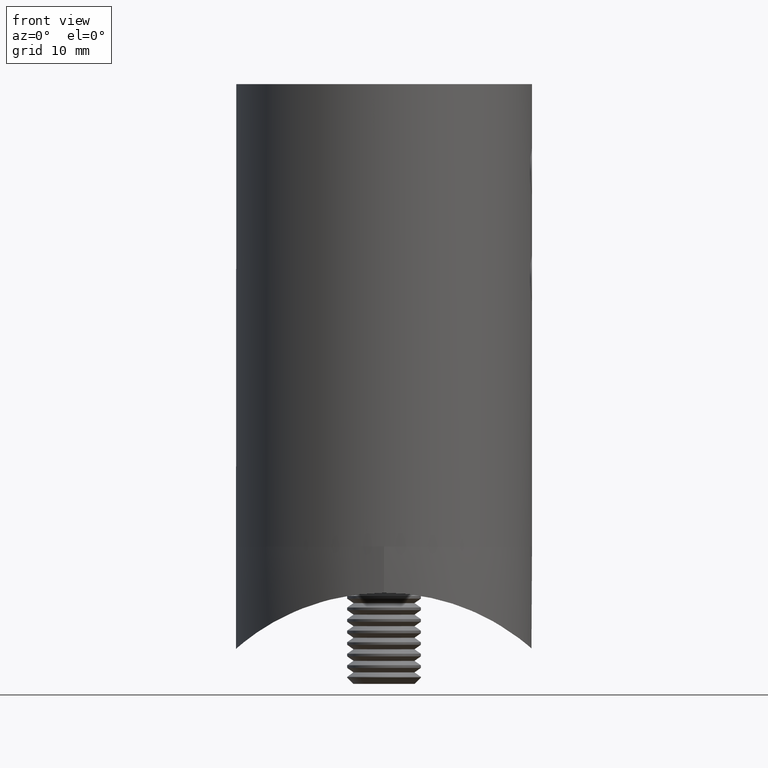
[diagram: clean part render]
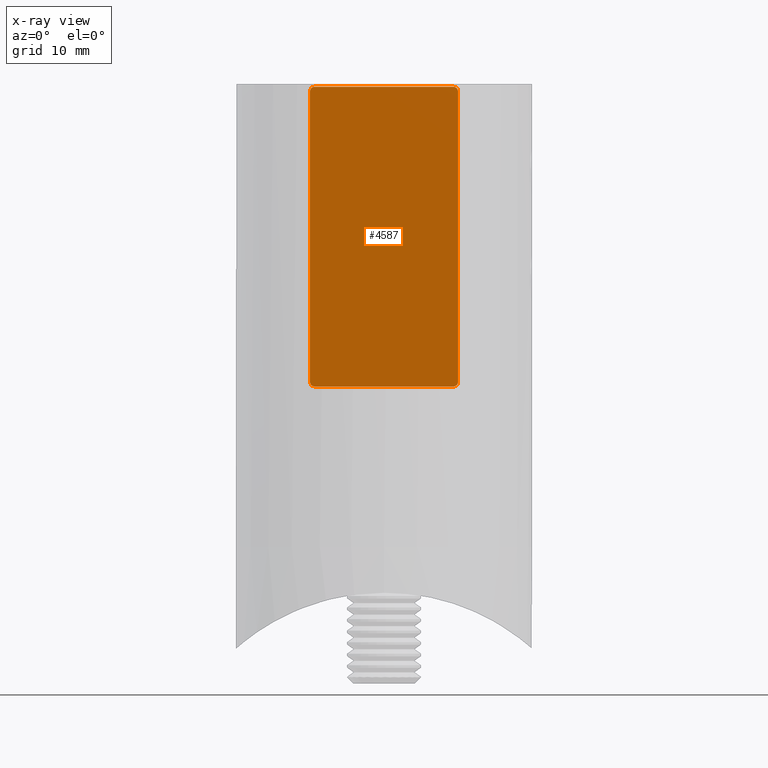
[diagram: x-ray — body ghosted, one internal face saturated and labeled with its STEP entity id]
A machine part, front view, then the same camera in x-ray: the body is ghosted and one INTERNAL B-rep face — a face not visible from any outside direction — is saturated and labeled: STEP entity #4587.
In plain terms, the highlighted planar face has unit normal (0, -1, -0).
Its self-contained STEP definition (entity closure, byte-faithful):
#58 = VECTOR ( 'NONE', #7859, 1000.000000000000000 ) ;
#299 = ORIENTED_EDGE ( 'NONE', *, *, #11091, .F. ) ;
#303 = ORIENTED_EDGE ( 'NONE', *, *, #5945, .T. ) ;
#342 = CARTESIAN_POINT ( 'NONE',  ( -16.19999999999999929, 0.000000000000000000, 7.499999999999996447 ) ) ;
#470 = CARTESIAN_POINT ( 'NONE',  ( -15.69999999999999929, 0.000000000000000000, -7.500000000000000000 ) ) ;
#501 = EDGE_LOOP ( 'NONE', ( #303, #2649, #3892, #14175, #14904, #8081, #299, #19527 ) ) ;
#859 = CARTESIAN_POINT ( 'NONE',  ( -15.69999999999999929, 0.000000000000000000, -7.500000000000000000 ) ) ;
#936 = EDGE_CURVE ( 'NONE', #11964, #18484, #19743, .T. ) ;
#1105 = CARTESIAN_POINT ( 'NONE',  ( -15.69999999999999574, 0.000000000000000000, 8.000000000000000000 ) ) ;
#1132 = VERTEX_POINT ( 'NONE', #4697 ) ;
#1371 = AXIS2_PLACEMENT_3D ( 'NONE', #6819, #12972, #17634 ) ;
#1564 = CARTESIAN_POINT ( 'NONE',  ( 15.69999999999999574, 0.000000000000000000, -8.000000000000000000 ) ) ;
#2122 = DIRECTION ( 'NONE',  ( 0.000000000000000000, -0.000000000000000000, -1.000000000000000000 ) ) ;
#2172 = EDGE_CURVE ( 'NONE', #12885, #5051, #12072, .T. ) ;
#2398 = CIRCLE ( 'NONE', #18486, 0.5000000000000004441 ) ;
#2640 = CARTESIAN_POINT ( 'NONE',  ( -16.19999999999999929, 0.000000000000000000, -7.499999999999996447 ) ) ;
#2649 = ORIENTED_EDGE ( 'NONE', *, *, #936, .T. ) ;
#2784 = CARTESIAN_POINT ( 'NONE',  ( -15.69999999999999574, 0.000000000000000000, -8.000000000000000000 ) ) ;
#2958 = DIRECTION ( 'NONE',  ( 0.000000000000000000, 0.000000000000000000, -1.000000000000000000 ) ) ;
#3289 = DIRECTION ( 'NONE',  ( 0.000000000000000000, 0.000000000000000000, 1.000000000000000000 ) ) ;
#3722 = VERTEX_POINT ( 'NONE', #342 ) ;
#3892 = ORIENTED_EDGE ( 'NONE', *, *, #12244, .F. ) ;
#4054 = DIRECTION ( 'NONE',  ( 1.000000000000000000, 0.000000000000000000, 0.000000000000000000 ) ) ;
#4211 = CARTESIAN_POINT ( 'NONE',  ( 16.19999999999999929, 0.000000000000000000, 7.499999999999996447 ) ) ;
#4336 = CARTESIAN_POINT ( 'NONE',  ( 15.69999999999999574, 0.000000000000000000, 8.000000000000000000 ) ) ;
#4501 = CARTESIAN_POINT ( 'NONE',  ( 16.19999999999999929, 0.000000000000000000, 7.499999999999996447 ) ) ;
#4587 = ADVANCED_FACE ( 'NONE', ( #17289 ), #8171, .T. ) ;
#4697 = CARTESIAN_POINT ( 'NONE',  ( -15.69999999999999574, 0.000000000000000000, 8.000000000000000000 ) ) ;
#5051 = VERTEX_POINT ( 'NONE', #5099 ) ;
#5099 = CARTESIAN_POINT ( 'NONE',  ( 16.19999999999999929, 0.000000000000000000, -7.499999999999996447 ) ) ;
#5351 = DIRECTION ( 'NONE',  ( 0.000000000000000000, 0.000000000000000000, -1.000000000000000000 ) ) ;
#5452 = CARTESIAN_POINT ( 'NONE',  ( -15.69999999999999574, 0.000000000000000000, -8.000000000000000000 ) ) ;
#5605 = VECTOR ( 'NONE', #2958, 1000.000000000000000 ) ;
#5647 = VECTOR ( 'NONE', #8464, 1000.000000000000000 ) ;
#5945 = EDGE_CURVE ( 'NONE', #16204, #11964, #2398, .T. ) ;
#5951 = CARTESIAN_POINT ( 'NONE',  ( -15.69999999999999929, 0.000000000000000000, 7.500000000000000000 ) ) ;
#6282 = CIRCLE ( 'NONE', #1371, 0.5000000000000004441 ) ;
#6331 = DIRECTION ( 'NONE',  ( 0.000000000000000000, 1.000000000000000000, 0.000000000000000000 ) ) ;
#6707 = VERTEX_POINT ( 'NONE', #4336 ) ;
#6819 = CARTESIAN_POINT ( 'NONE',  ( 15.69999999999999929, 0.000000000000000000, -7.500000000000000000 ) ) ;
#7375 = DIRECTION ( 'NONE',  ( 0.000000000000000000, 0.000000000000000000, 1.000000000000000000 ) ) ;
#7440 = VECTOR ( 'NONE', #4054, 1000.000000000000000 ) ;
#7762 = CIRCLE ( 'NONE', #17653, 0.5000000000000004441 ) ;
#7859 = DIRECTION ( 'NONE',  ( 0.000000000000000000, 0.000000000000000000, -1.000000000000000000 ) ) ;
#8081 = ORIENTED_EDGE ( 'NONE', *, *, #18082, .F. ) ;
#8171 = PLANE ( 'NONE',  #18880 ) ;
#8464 = DIRECTION ( 'NONE',  ( 1.000000000000000000, 0.000000000000000000, 0.000000000000000000 ) ) ;
#9842 = DIRECTION ( 'NONE',  ( 0.000000000000000000, -1.000000000000000000, 0.000000000000000000 ) ) ;
#10420 = EDGE_CURVE ( 'NONE', #6707, #12885, #7762, .T. ) ;
#10873 = CARTESIAN_POINT ( 'NONE',  ( 15.69999999999999929, 0.000000000000000000, 7.500000000000000000 ) ) ;
#11091 = EDGE_CURVE ( 'NONE', #3722, #1132, #15680, .T. ) ;
#11583 = DIRECTION ( 'NONE',  ( -0.000000000000000000, -1.000000000000000000, 0.000000000000000000 ) ) ;
#11903 = DIRECTION ( 'NONE',  ( 0.000000000000000000, 1.000000000000000000, 0.000000000000000000 ) ) ;
#11964 = VERTEX_POINT ( 'NONE', #2784 ) ;
#12072 = LINE ( 'NONE', #4501, #5605 ) ;
#12244 = EDGE_CURVE ( 'NONE', #5051, #18484, #6282, .T. ) ;
#12621 = EDGE_CURVE ( 'NONE', #3722, #16204, #18468, .T. ) ;
#12885 = VERTEX_POINT ( 'NONE', #4211 ) ;
#12972 = DIRECTION ( 'NONE',  ( 0.000000000000000000, 1.000000000000000000, 0.000000000000000000 ) ) ;
#14175 = ORIENTED_EDGE ( 'NONE', *, *, #2172, .F. ) ;
#14904 = ORIENTED_EDGE ( 'NONE', *, *, #10420, .F. ) ;
#15573 = CARTESIAN_POINT ( 'NONE',  ( -16.19999999999999929, 0.000000000000000000, 7.499999999999996447 ) ) ;
#15680 = CIRCLE ( 'NONE', #17270, 0.5000000000000004441 ) ;
#16204 = VERTEX_POINT ( 'NONE', #2640 ) ;
#16293 = LINE ( 'NONE', #1105, #7440 ) ;
#17270 = AXIS2_PLACEMENT_3D ( 'NONE', #5951, #11903, #7375 ) ;
#17289 = FACE_OUTER_BOUND ( 'NONE', #501, .T. ) ;
#17634 = DIRECTION ( 'NONE',  ( 0.000000000000000000, 0.000000000000000000, 1.000000000000000000 ) ) ;
#17653 = AXIS2_PLACEMENT_3D ( 'NONE', #10873, #6331, #3289 ) ;
#18082 = EDGE_CURVE ( 'NONE', #1132, #6707, #16293, .T. ) ;
#18468 = LINE ( 'NONE', #15573, #58 ) ;
#18484 = VERTEX_POINT ( 'NONE', #1564 ) ;
#18486 = AXIS2_PLACEMENT_3D ( 'NONE', #859, #11583, #5351 ) ;
#18880 = AXIS2_PLACEMENT_3D ( 'NONE', #470, #9842, #2122 ) ;
#19527 = ORIENTED_EDGE ( 'NONE', *, *, #12621, .T. ) ;
#19743 = LINE ( 'NONE', #5452, #5647 ) ;